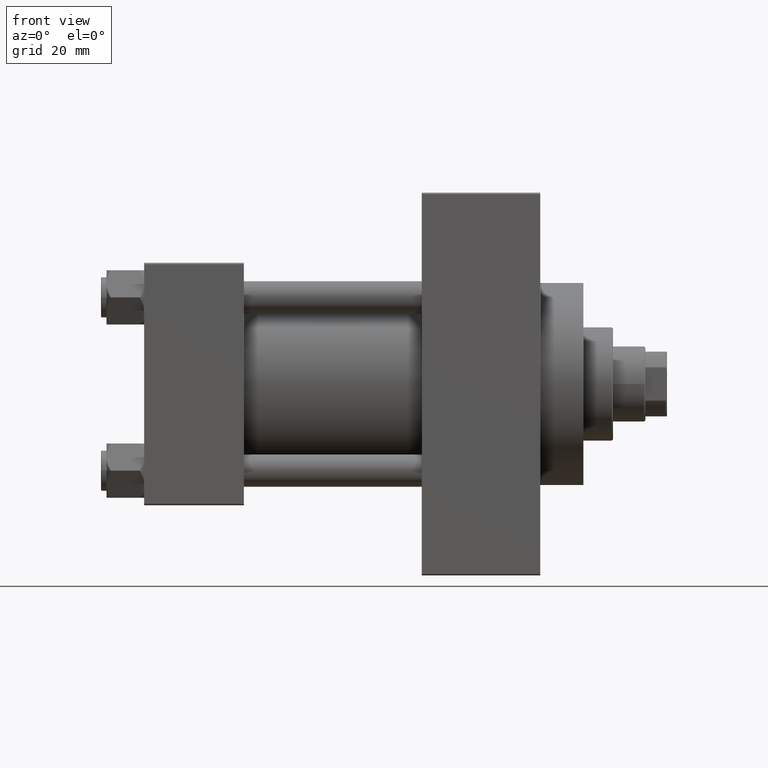
[diagram: clean part render]
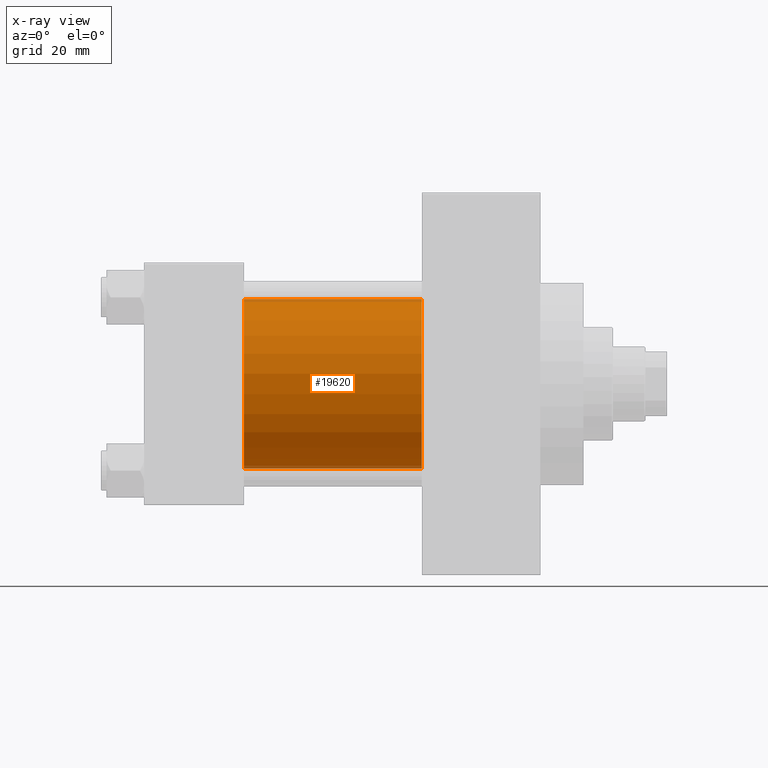
[diagram: x-ray — body ghosted, one internal face saturated and labeled with its STEP entity id]
A machine part, front view, then the same camera in x-ray: the body is ghosted and one INTERNAL B-rep face — a face not visible from any outside direction — is saturated and labeled: STEP entity #19620.
In plain terms, the highlighted cylindrical surface (partial cylindrical patch) has radius 31.5 mm, axis along (-1, -0, -0).
Its self-contained STEP definition (entity closure, byte-faithful):
#372 = CARTESIAN_POINT ( 'NONE',  ( 37.00000000000000000, 1.255552203348951850E-15, -31.50000000000000000 ) ) ;
#450 = DIRECTION ( 'NONE',  ( 1.000000000000000000, 0.000000000000000000, 0.000000000000000000 ) ) ;
#1591 = CARTESIAN_POINT ( 'NONE',  ( 103.0000000000000142, -2.602085213965210642E-15, 31.50000000000000000 ) ) ;
#2878 = EDGE_LOOP ( 'NONE', ( #10351, #15175, #5493, #20349 ) ) ;
#3713 = DIRECTION ( 'NONE',  ( 0.000000000000000000, 0.000000000000000000, -1.000000000000000000 ) ) ;
#4561 = CARTESIAN_POINT ( 'NONE',  ( 103.0000000000000142, -2.602085213965210642E-15, 31.50000000000000000 ) ) ;
#5493 = ORIENTED_EDGE ( 'NONE', *, *, #38863, .F. ) ;
#6056 = LINE ( 'NONE', #1591, #16231 ) ;
#8967 = DIRECTION ( 'NONE',  ( -1.000000000000000000, -0.000000000000000000, -0.000000000000000000 ) ) ;
#10081 = DIRECTION ( 'NONE',  ( 0.000000000000000000, 0.000000000000000000, -1.000000000000000000 ) ) ;
#10351 = ORIENTED_EDGE ( 'NONE', *, *, #16948, .T. ) ;
#14125 = VERTEX_POINT ( 'NONE', #4561 ) ;
#15175 = ORIENTED_EDGE ( 'NONE', *, *, #18598, .T. ) ;
#15177 = VECTOR ( 'NONE', #42685, 1000.000000000000000 ) ;
#16035 = VERTEX_POINT ( 'NONE', #39050 ) ;
#16231 = VECTOR ( 'NONE', #17747, 1000.000000000000000 ) ;
#16948 = EDGE_CURVE ( 'NONE', #14125, #17011, #42967, .T. ) ;
#17011 = VERTEX_POINT ( 'NONE', #23354 ) ;
#17747 = DIRECTION ( 'NONE',  ( -1.000000000000000000, -0.000000000000000000, -0.000000000000000000 ) ) ;
#18598 = EDGE_CURVE ( 'NONE', #17011, #22419, #28211, .T. ) ;
#19620 = ADVANCED_FACE ( 'NONE', ( #35643 ), #23912, .F. ) ;
#20349 = ORIENTED_EDGE ( 'NONE', *, *, #39203, .F. ) ;
#21000 = AXIS2_PLACEMENT_3D ( 'NONE', #21044, #44490, #10081 ) ;
#21044 = CARTESIAN_POINT ( 'NONE',  ( 37.00000000000000000, -2.602085213965210642E-15, 0.000000000000000000 ) ) ;
#22419 = VERTEX_POINT ( 'NONE', #372 ) ;
#23116 = CARTESIAN_POINT ( 'NONE',  ( 103.0000000000000142, -2.602085213965210642E-15, 0.000000000000000000 ) ) ;
#23354 = CARTESIAN_POINT ( 'NONE',  ( 103.0000000000000142, 1.255552203348951850E-15, -31.50000000000000000 ) ) ;
#23672 = CARTESIAN_POINT ( 'NONE',  ( 103.0000000000000142, -2.602085213965210642E-15, 0.000000000000000000 ) ) ;
#23912 = CYLINDRICAL_SURFACE ( 'NONE', #43071, 31.50000000000000000 ) ;
#27469 = CARTESIAN_POINT ( 'NONE',  ( 103.0000000000000142, 1.255552203348951850E-15, -31.50000000000000000 ) ) ;
#28211 = LINE ( 'NONE', #27469, #15177 ) ;
#35115 = AXIS2_PLACEMENT_3D ( 'NONE', #23116, #450, #3713 ) ;
#35319 = CIRCLE ( 'NONE', #21000, 31.50000000000000000 ) ;
#35643 = FACE_OUTER_BOUND ( 'NONE', #2878, .T. ) ;
#38863 = EDGE_CURVE ( 'NONE', #16035, #22419, #35319, .T. ) ;
#39050 = CARTESIAN_POINT ( 'NONE',  ( 37.00000000000000000, -2.602085213965210642E-15, 31.50000000000000000 ) ) ;
#39203 = EDGE_CURVE ( 'NONE', #14125, #16035, #6056, .T. ) ;
#42685 = DIRECTION ( 'NONE',  ( -1.000000000000000000, -0.000000000000000000, -0.000000000000000000 ) ) ;
#42967 = CIRCLE ( 'NONE', #35115, 31.50000000000000000 ) ;
#43071 = AXIS2_PLACEMENT_3D ( 'NONE', #23672, #8967, #43612 ) ;
#43612 = DIRECTION ( 'NONE',  ( 0.000000000000000000, 0.000000000000000000, 1.000000000000000000 ) ) ;
#44490 = DIRECTION ( 'NONE',  ( 1.000000000000000000, 0.000000000000000000, 0.000000000000000000 ) ) ;